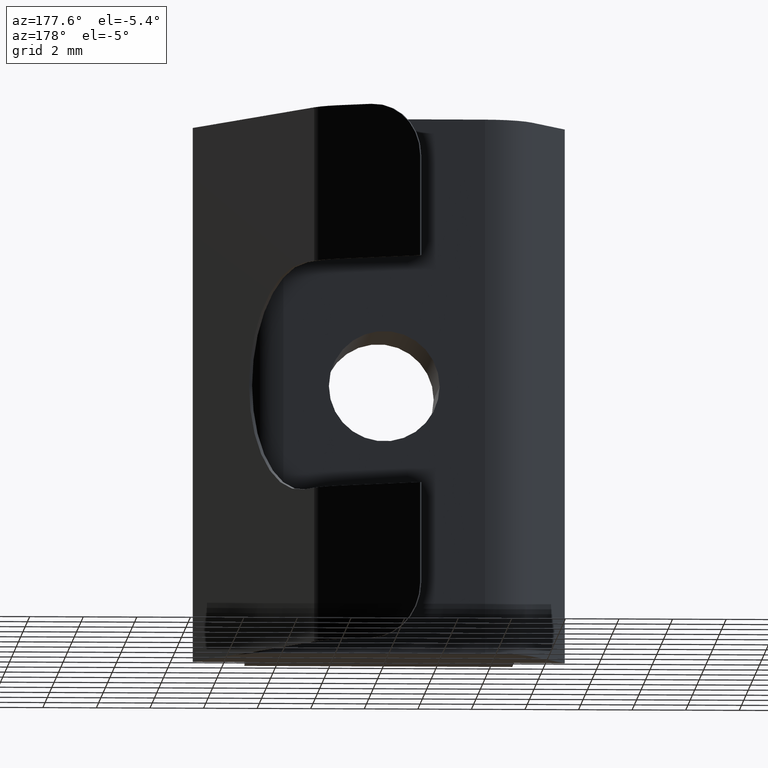
[diagram: clean part render]
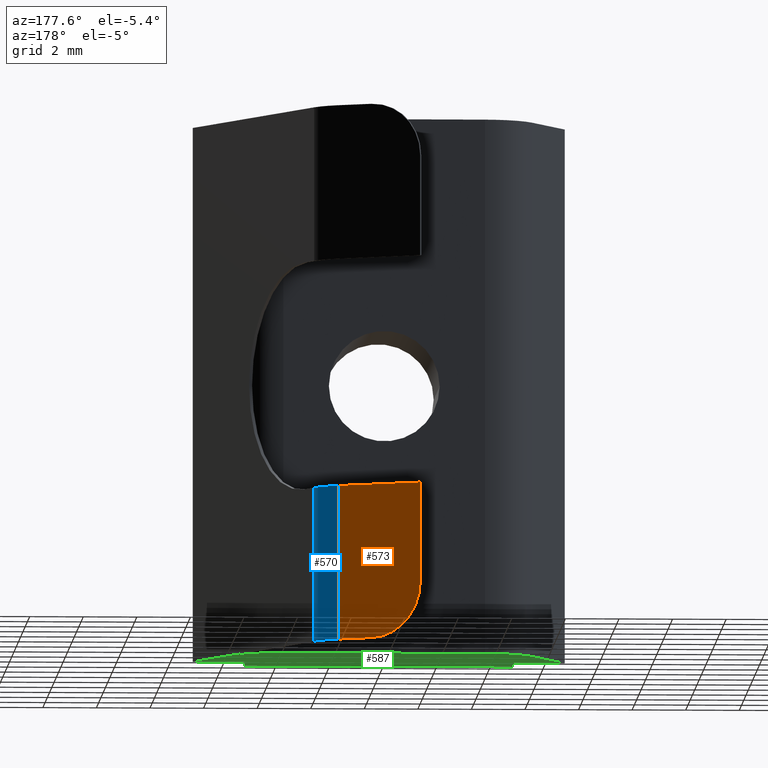
[diagram: same view with three faces highlighted in distinct colors, each labeled with its STEP entity id]
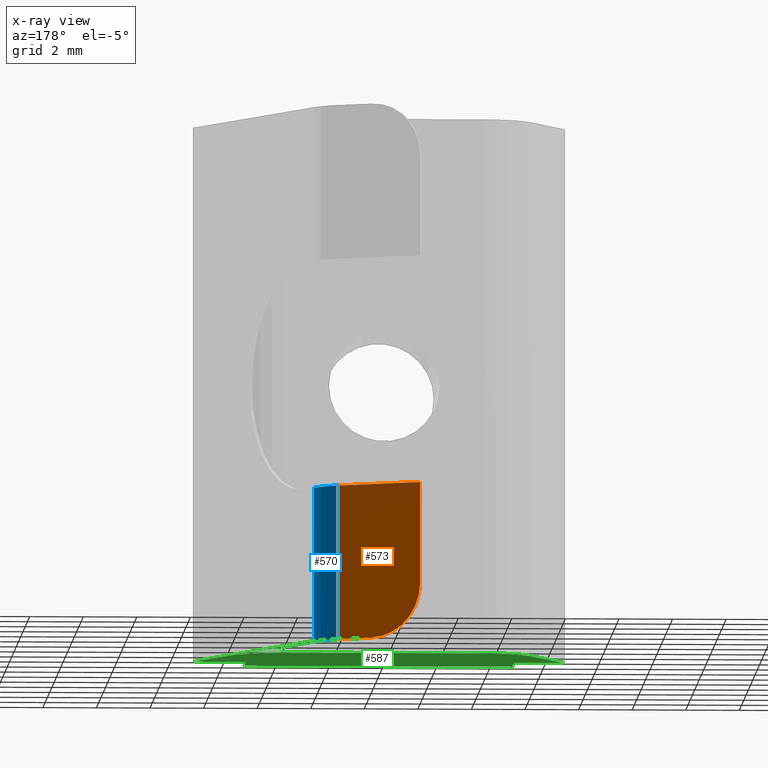
[diagram: x-ray of the same camera — body ghosted, the three highlighted faces saturated]
A machine part, auxiliary view with three faces highlighted in distinct colors.
The next image is the same camera in x-ray (body ghosted, the three faces saturated) — at least one of them is partly hidden behind the body in this view.
Their STEP definitions:

[orange] entity #573 — the highlighted planar face has unit normal (0.4541, 0.8909, 0).
#21=PLANE('',#636);
#46=FACE_OUTER_BOUND('',#76,.T.);
#76=EDGE_LOOP('',(#432,#433,#434,#435,#436));
#108=LINE('',#862,#172);
#119=LINE('',#899,#183);
#122=LINE('',#910,#186);
#123=LINE('',#913,#187);
#172=VECTOR('',#693,10.);
#183=VECTOR('',#716,10.);
#186=VECTOR('',#729,10.);
#187=VECTOR('',#732,10.);
#239=CIRCLE('',#637,2.);
#260=VERTEX_POINT('',#859);
#261=VERTEX_POINT('',#861);
#271=VERTEX_POINT('',#897);
#274=VERTEX_POINT('',#909);
#275=VERTEX_POINT('',#911);
#317=EDGE_CURVE('',#261,#260,#108,.T.);
#332=EDGE_CURVE('',#271,#260,#119,.T.);
#337=EDGE_CURVE('',#274,#271,#122,.T.);
#338=EDGE_CURVE('',#275,#274,#239,.T.);
#339=EDGE_CURVE('',#275,#261,#123,.T.);
#432=ORIENTED_EDGE('',*,*,#317,.T.);
#433=ORIENTED_EDGE('',*,*,#332,.F.);
#434=ORIENTED_EDGE('',*,*,#337,.F.);
#435=ORIENTED_EDGE('',*,*,#338,.F.);
#436=ORIENTED_EDGE('',*,*,#339,.T.);
#573=ADVANCED_FACE('',(#46),#21,.T.);
#636=AXIS2_PLACEMENT_3D('',#908,#727,#728);
#637=AXIS2_PLACEMENT_3D('',#912,#730,#731);
#693=DIRECTION('',(0.890925841718743,-0.454148813229484,-2.43361688246749E-16));
#716=DIRECTION('',(0.,0.,1.));
#727=DIRECTION('center_axis',(0.454148813229484,0.890925841718743,0.));
#728=DIRECTION('ref_axis',(-0.890925841718743,0.454148813229484,0.));
#729=DIRECTION('',(0.890925841718743,-0.454148813229484,0.));
#730=DIRECTION('center_axis',(-0.454148813229484,-0.890925841718743,0.));
#731=DIRECTION('ref_axis',(-0.629979704213658,0.321131705502387,-0.707106781186548));
#732=DIRECTION('',(0.,0.,1.));
#859=CARTESIAN_POINT('',(1.93103694289108,9.28784389332367,5.75));
#861=CARTESIAN_POINT('',(-1.04639660277456,10.8055885224671,5.75));
#862=CARTESIAN_POINT('',(1.77415404343522,9.36781483957709,5.75));
#897=CARTESIAN_POINT('',(1.93103694289108,9.28784389332367,0.));
#899=CARTESIAN_POINT('',(1.93103694289108,9.28784389332367,0.));
#908=CARTESIAN_POINT('Origin',(2.51730676410041,8.98899326954915,0.));
#909=CARTESIAN_POINT('',(0.735455080662925,9.89729089600812,0.));
#910=CARTESIAN_POINT('',(-1.04639660277456,10.8055885224671,0.));
#911=CARTESIAN_POINT('',(-1.04639660277456,10.8055885224671,2.));
#912=CARTESIAN_POINT('Origin',(0.735455080662919,9.89729089600811,2.));
#913=CARTESIAN_POINT('',(-1.04639660277456,10.8055885224671,0.));

[blue] entity #570 — the highlighted cylindrical surface (partial cylindrical patch) has radius 2 mm, axis along (0, 0, 1).
#43=FACE_OUTER_BOUND('',#73,.T.);
#73=EDGE_LOOP('',(#420,#421,#422,#423));
#118=LINE('',#896,#182);
#119=LINE('',#899,#183);
#182=VECTOR('',#713,10.);
#183=VECTOR('',#716,10.);
#232=CIRCLE('',#625,2.);
#236=CIRCLE('',#631,2.);
#258=VERTEX_POINT('',#856);
#260=VERTEX_POINT('',#859);
#270=VERTEX_POINT('',#895);
#271=VERTEX_POINT('',#897);
#316=EDGE_CURVE('',#260,#258,#232,.T.);
#330=EDGE_CURVE('',#258,#270,#118,.T.);
#331=EDGE_CURVE('',#270,#271,#236,.T.);
#332=EDGE_CURVE('',#271,#260,#119,.T.);
#420=ORIENTED_EDGE('',*,*,#316,.T.);
#421=ORIENTED_EDGE('',*,*,#330,.T.);
#422=ORIENTED_EDGE('',*,*,#331,.T.);
#423=ORIENTED_EDGE('',*,*,#332,.T.);
#557=CYLINDRICAL_SURFACE('',#630,2.);
#570=ADVANCED_FACE('',(#43),#557,.T.);
#625=AXIS2_PLACEMENT_3D('',#860,#691,#692);
#630=AXIS2_PLACEMENT_3D('',#894,#711,#712);
#631=AXIS2_PLACEMENT_3D('',#898,#714,#715);
#691=DIRECTION('center_axis',(0.,5.35863314309216E-16,-1.));
#692=DIRECTION('ref_axis',(0.709848187401337,0.704354705275003,0.));
#711=DIRECTION('center_axis',(0.,0.,1.));
#712=DIRECTION('ref_axis',(0.709848187401337,0.704354705275003,0.));
#713=DIRECTION('',(0.,0.,-1.));
#714=DIRECTION('center_axis',(0.,0.,1.));
#715=DIRECTION('ref_axis',(0.709848187401337,0.704354705275003,0.));
#716=DIRECTION('',(0.,0.,1.));
#856=CARTESIAN_POINT('',(2.81159369843194,8.4004194008861,5.75));
#859=CARTESIAN_POINT('',(1.93103694289108,9.28784389332367,5.75));
#860=CARTESIAN_POINT('Origin',(1.02273931643211,7.50599220988618,5.75));
#894=CARTESIAN_POINT('Origin',(1.02273931643211,7.50599220988618,0.));
#895=CARTESIAN_POINT('',(2.81159369843194,8.4004194008861,0.));
#896=CARTESIAN_POINT('',(2.81159369843194,8.4004194008861,0.));
#897=CARTESIAN_POINT('',(1.93103694289108,9.28784389332367,0.));
#898=CARTESIAN_POINT('Origin',(1.02273931643211,7.50599220988618,0.));
#899=CARTESIAN_POINT('',(1.93103694289108,9.28784389332367,0.));

[green] entity #587 — the highlighted planar face has unit normal (0, 0, 1).
#31=PLANE('',#658);
#60=FACE_OUTER_BOUND('',#91,.T.);
#91=EDGE_LOOP('',(#510,#511,#512,#513,#514,#515,#516,#517,#518,#519,#520,
#521,#522,#523,#524,#525,#526));
#114=LINE('',#888,#178);
#122=LINE('',#910,#186);
#125=LINE('',#919,#189);
#135=LINE('',#943,#199);
#146=LINE('',#968,#210);
#147=LINE('',#974,#211);
#150=LINE('',#982,#214);
#152=LINE('',#986,#216);
#153=LINE('',#988,#217);
#154=LINE('',#990,#218);
#155=LINE('',#992,#219);
#156=LINE('',#994,#220);
#157=LINE('',#996,#221);
#178=VECTOR('',#707,10.);
#186=VECTOR('',#729,10.);
#189=VECTOR('',#738,10.);
#199=VECTOR('',#762,10.);
#210=VECTOR('',#781,10.);
#211=VECTOR('',#790,10.);
#214=VECTOR('',#799,10.);
#216=VECTOR('',#803,10.);
#217=VECTOR('',#804,10.);
#218=VECTOR('',#805,10.);
#219=VECTOR('',#806,10.);
#220=VECTOR('',#807,10.);
#221=VECTOR('',#808,10.);
#236=CIRCLE('',#631,2.);
#237=CIRCLE('',#633,2.);
#246=CIRCLE('',#656,2.);
#247=CIRCLE('',#659,2.);
#266=VERTEX_POINT('',#885);
#267=VERTEX_POINT('',#887);
#270=VERTEX_POINT('',#895);
#271=VERTEX_POINT('',#897);
#272=VERTEX_POINT('',#901);
#274=VERTEX_POINT('',#909);
#277=VERTEX_POINT('',#917);
#284=VERTEX_POINT('',#941);
#295=VERTEX_POINT('',#973);
#296=VERTEX_POINT('',#977);
#297=VERTEX_POINT('',#981);
#298=VERTEX_POINT('',#985);
#299=VERTEX_POINT('',#987);
#300=VERTEX_POINT('',#989);
#301=VERTEX_POINT('',#991);
#302=VERTEX_POINT('',#993);
#303=VERTEX_POINT('',#995);
#326=EDGE_CURVE('',#267,#266,#114,.T.);
#331=EDGE_CURVE('',#270,#271,#236,.T.);
#334=EDGE_CURVE('',#272,#266,#237,.T.);
#337=EDGE_CURVE('',#274,#271,#122,.T.);
#342=EDGE_CURVE('',#272,#277,#125,.T.);
#354=EDGE_CURVE('',#270,#284,#135,.T.);
#367=EDGE_CURVE('',#274,#277,#146,.T.);
#369=EDGE_CURVE('',#284,#295,#147,.T.);
#371=EDGE_CURVE('',#267,#296,#246,.T.);
#373=EDGE_CURVE('',#297,#296,#150,.T.);
#375=EDGE_CURVE('',#295,#298,#152,.T.);
#376=EDGE_CURVE('',#298,#299,#153,.T.);
#377=EDGE_CURVE('',#299,#300,#154,.T.);
#378=EDGE_CURVE('',#300,#301,#155,.T.);
#379=EDGE_CURVE('',#301,#302,#156,.T.);
#380=EDGE_CURVE('',#302,#303,#157,.T.);
#381=EDGE_CURVE('',#297,#303,#247,.T.);
#510=ORIENTED_EDGE('',*,*,#331,.F.);
#511=ORIENTED_EDGE('',*,*,#354,.T.);
#512=ORIENTED_EDGE('',*,*,#369,.T.);
#513=ORIENTED_EDGE('',*,*,#375,.T.);
#514=ORIENTED_EDGE('',*,*,#376,.T.);
#515=ORIENTED_EDGE('',*,*,#377,.T.);
#516=ORIENTED_EDGE('',*,*,#378,.T.);
#517=ORIENTED_EDGE('',*,*,#379,.T.);
#518=ORIENTED_EDGE('',*,*,#380,.T.);
#519=ORIENTED_EDGE('',*,*,#381,.F.);
#520=ORIENTED_EDGE('',*,*,#373,.T.);
#521=ORIENTED_EDGE('',*,*,#371,.F.);
#522=ORIENTED_EDGE('',*,*,#326,.T.);
#523=ORIENTED_EDGE('',*,*,#334,.F.);
#524=ORIENTED_EDGE('',*,*,#342,.T.);
#525=ORIENTED_EDGE('',*,*,#367,.F.);
#526=ORIENTED_EDGE('',*,*,#337,.T.);
#587=ADVANCED_FACE('',(#60),#31,.F.);
#631=AXIS2_PLACEMENT_3D('',#898,#714,#715);
#633=AXIS2_PLACEMENT_3D('',#903,#720,#721);
#656=AXIS2_PLACEMENT_3D('',#978,#794,#795);
#658=AXIS2_PLACEMENT_3D('',#984,#801,#802);
#659=AXIS2_PLACEMENT_3D('',#997,#809,#810);
#707=DIRECTION('',(-0.447213595499958,0.894427190999916,0.));
#714=DIRECTION('center_axis',(0.,0.,1.));
#715=DIRECTION('ref_axis',(0.709848187401337,0.704354705275003,0.));
#720=DIRECTION('center_axis',(0.,0.,-1.));
#721=DIRECTION('ref_axis',(0.709848187401337,0.704354705275003,0.));
#729=DIRECTION('',(0.890925841718743,-0.454148813229484,0.));
#738=DIRECTION('',(-0.890925841718743,0.454148813229485,0.));
#762=DIRECTION('',(0.447213595499958,-0.894427190999916,0.));
#781=DIRECTION('',(-0.454148813229479,-0.890925841718746,0.));
#790=DIRECTION('',(-0.894427190999915,-0.447213595499959,0.));
#794=DIRECTION('center_axis',(0.,0.,1.));
#795=DIRECTION('ref_axis',(0.525731112119134,0.85065080835204,0.));
#799=DIRECTION('',(1.,0.,0.));
#801=DIRECTION('center_axis',(0.,0.,1.));
#802=DIRECTION('ref_axis',(1.,0.,0.));
#803=DIRECTION('',(-1.,1.46081976924363E-16,0.));
#804=DIRECTION('',(0.,-1.,0.));
#805=DIRECTION('',(-1.,0.,0.));
#806=DIRECTION('',(0.,1.,0.));
#807=DIRECTION('',(-1.,-1.46081976924363E-16,0.));
#808=DIRECTION('',(0.447213595499958,0.894427190999916,0.));
#809=DIRECTION('center_axis',(0.,0.,1.));
#810=DIRECTION('ref_axis',(-0.525731112119134,0.85065080835204,0.));
#885=CARTESIAN_POINT('',(2.73686532604853,8.32626934790295,0.));
#887=CARTESIAN_POINT('',(5.55278640450004,2.69442719099992,0.));
#888=CARTESIAN_POINT('',(6.9,-9.0205620750794E-16,0.));
#895=CARTESIAN_POINT('',(2.81159369843194,8.4004194008861,0.));
#897=CARTESIAN_POINT('',(1.93103694289108,9.28784389332367,0.));
#898=CARTESIAN_POINT('Origin',(1.02273931643211,7.50599220988618,0.));
#901=CARTESIAN_POINT('',(1.85630857050767,9.21369384034052,0.));
#903=CARTESIAN_POINT('Origin',(0.948010944048698,7.43184215690303,0.));
#909=CARTESIAN_POINT('',(0.735455080662925,9.89729089600812,0.));
#910=CARTESIAN_POINT('',(-1.04639660277456,10.8055885224671,0.));
#917=CARTESIAN_POINT('',(0.690040199339977,9.80819831183625,0.));
#919=CARTESIAN_POINT('',(2.442578391717,8.914843216566,0.));
#941=CARTESIAN_POINT('',(6.98944271909999,0.0447213595499949,0.));
#943=CARTESIAN_POINT('',(2.51730676410041,8.98899326954915,0.));
#968=CARTESIAN_POINT('',(-1.13121325449077,6.23535672539916,0.));
#973=CARTESIAN_POINT('',(6.9,-9.0205620750794E-16,0.));
#974=CARTESIAN_POINT('',(6.98944271909999,0.0447213595499949,0.));
#977=CARTESIAN_POINT('',(3.76393202250021,3.8,0.));
#978=CARTESIAN_POINT('Origin',(3.76393202250021,1.8,0.));
#981=CARTESIAN_POINT('',(-3.76393202250021,3.8,0.));
#982=CARTESIAN_POINT('',(-5.,3.8,0.));
#984=CARTESIAN_POINT('Origin',(1.7692705318027E-16,1.04525454979326,0.));
#985=CARTESIAN_POINT('',(5.,-6.24500451351651E-16,0.));
#986=CARTESIAN_POINT('',(6.9,-9.0205620750794E-16,0.));
#987=CARTESIAN_POINT('',(5.,-1.5,0.));
#988=CARTESIAN_POINT('',(5.,-6.24500451351651E-16,0.));
#989=CARTESIAN_POINT('',(-5.,-1.5,0.));
#990=CARTESIAN_POINT('',(5.,-1.5,0.));
#991=CARTESIAN_POINT('',(-5.,-6.24500451351651E-16,0.));
#992=CARTESIAN_POINT('',(-5.,-1.5,0.));
#993=CARTESIAN_POINT('',(-6.9,-9.0205620750794E-16,0.));
#994=CARTESIAN_POINT('',(-5.,-6.24500451351651E-16,0.));
#995=CARTESIAN_POINT('',(-5.55278640450004,2.69442719099992,0.));
#996=CARTESIAN_POINT('',(-6.9,-9.0205620750794E-16,0.));
#997=CARTESIAN_POINT('Origin',(-3.76393202250021,1.8,0.));